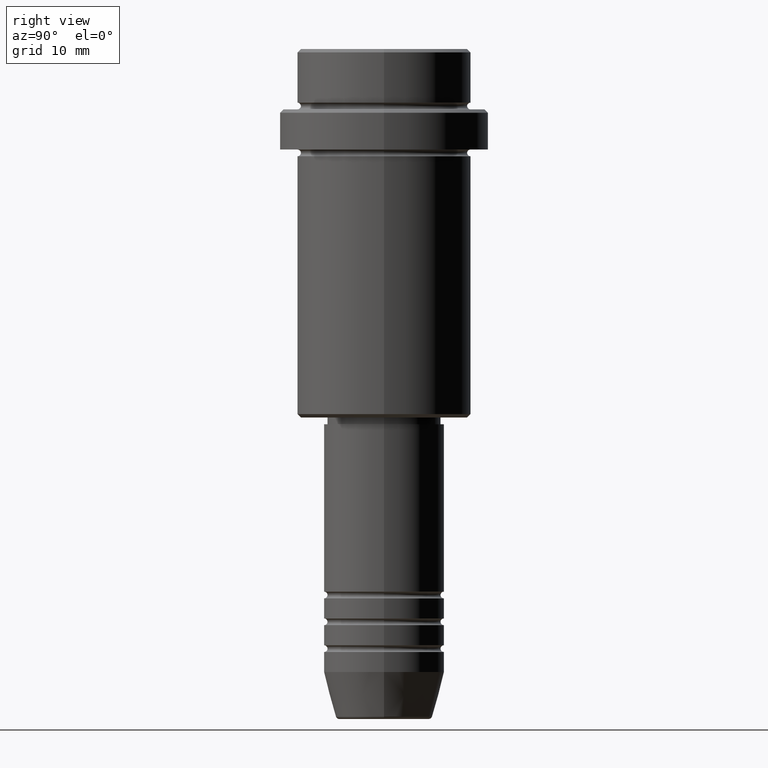
[diagram: clean part render]
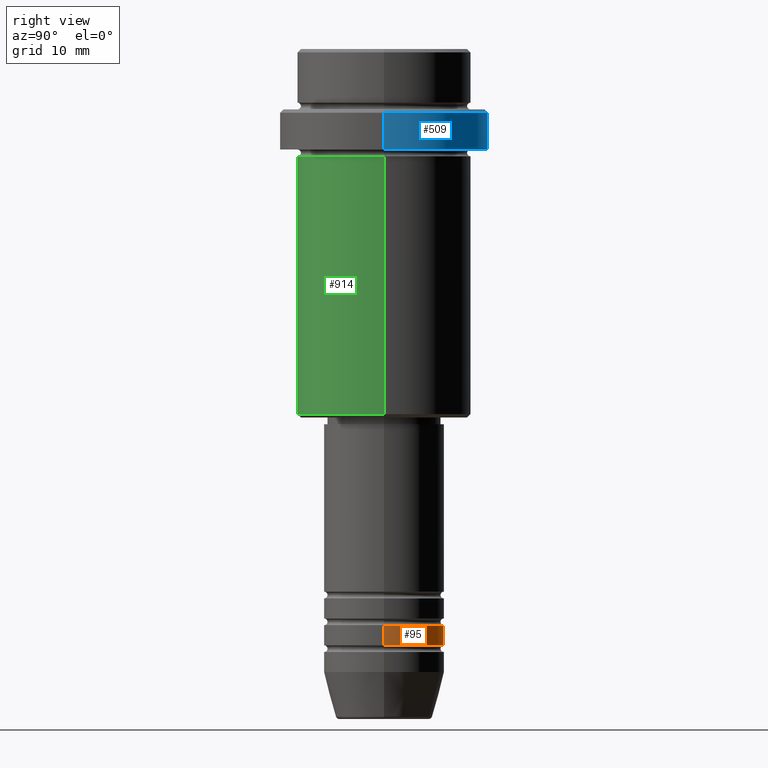
[diagram: same view with three faces highlighted in distinct colors, each labeled with its STEP entity id]
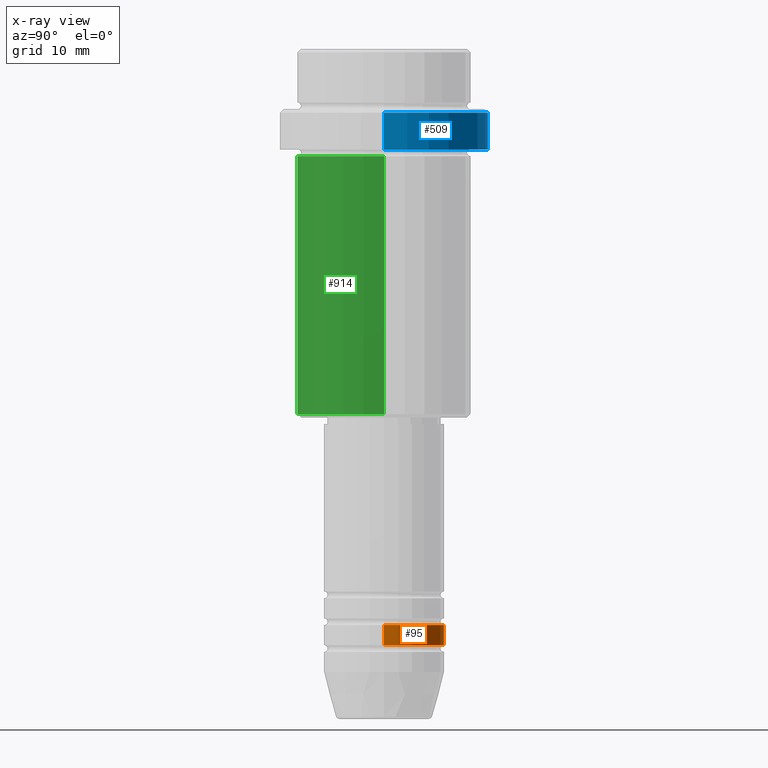
[diagram: x-ray of the same camera — body ghosted, the three highlighted faces saturated]
A machine part, right view with three faces highlighted in distinct colors.
The next image is the same camera in x-ray (body ghosted, the three faces saturated) — at least one of them is partly hidden behind the body in this view.
Their STEP definitions:

[orange] entity #95 — the highlighted cylindrical surface (partial cylindrical patch) has radius 9 mm, axis along (-0, -0, 1).
#12 = AXIS2_PLACEMENT_3D ( 'NONE', #865, #561, #681 ) ;
#39 = ORIENTED_EDGE ( 'NONE', *, *, #210, .T. ) ;
#58 = CIRCLE ( 'NONE', #12, 9.000000000000000000 ) ;
#74 = EDGE_LOOP ( 'NONE', ( #610, #39, #863, #189 ) ) ;
#95 = ADVANCED_FACE ( 'NONE', ( #496 ), #1348, .T. ) ;
#183 = EDGE_CURVE ( 'NONE', #1082, #336, #385, .T. ) ;
#189 = ORIENTED_EDGE ( 'NONE', *, *, #183, .F. ) ;
#210 = EDGE_CURVE ( 'NONE', #1263, #483, #735, .T. ) ;
#247 = CARTESIAN_POINT ( 'NONE',  ( 0.000000000000000000, 0.000000000000000000, 0.000000000000000000 ) ) ;
#336 = VERTEX_POINT ( 'NONE', #1095 ) ;
#358 = CARTESIAN_POINT ( 'NONE',  ( -9.000000000000000000, 1.102182119232617714E-15, -85.99999999999988631 ) ) ;
#385 = LINE ( 'NONE', #594, #603 ) ;
#391 = EDGE_CURVE ( 'NONE', #1082, #1263, #876, .T. ) ;
#483 = VERTEX_POINT ( 'NONE', #358 ) ;
#488 = DIRECTION ( 'NONE',  ( -0.000000000000000000, -0.000000000000000000, 1.000000000000000000 ) ) ;
#496 = FACE_OUTER_BOUND ( 'NONE', #74, .T. ) ;
#503 = CARTESIAN_POINT ( 'NONE',  ( -9.000000000000000000, 1.102182119232617714E-15, -88.99999999999988631 ) ) ;
#534 = CARTESIAN_POINT ( 'NONE',  ( 0.000000000000000000, 0.000000000000000000, -88.99999999999988631 ) ) ;
#561 = DIRECTION ( 'NONE',  ( -0.000000000000000000, -0.000000000000000000, 1.000000000000000000 ) ) ;
#594 = CARTESIAN_POINT ( 'NONE',  ( 9.000000000000000000, 0.000000000000000000, 0.000000000000000000 ) ) ;
#603 = VECTOR ( 'NONE', #1031, 1000.000000000000000 ) ;
#610 = ORIENTED_EDGE ( 'NONE', *, *, #391, .T. ) ;
#664 = DIRECTION ( 'NONE',  ( -0.000000000000000000, -0.000000000000000000, 1.000000000000000000 ) ) ;
#670 = EDGE_CURVE ( 'NONE', #336, #483, #58, .T. ) ;
#676 = DIRECTION ( 'NONE',  ( 1.000000000000000000, 0.000000000000000000, 0.000000000000000000 ) ) ;
#681 = DIRECTION ( 'NONE',  ( 1.000000000000000000, 0.000000000000000000, 0.000000000000000000 ) ) ;
#735 = LINE ( 'NONE', #848, #1131 ) ;
#834 = DIRECTION ( 'NONE',  ( -0.000000000000000000, -0.000000000000000000, 1.000000000000000000 ) ) ;
#848 = CARTESIAN_POINT ( 'NONE',  ( -9.000000000000000000, 1.102182119232617714E-15, 0.000000000000000000 ) ) ;
#863 = ORIENTED_EDGE ( 'NONE', *, *, #670, .F. ) ;
#865 = CARTESIAN_POINT ( 'NONE',  ( 0.000000000000000000, 0.000000000000000000, -85.99999999999988631 ) ) ;
#872 = CARTESIAN_POINT ( 'NONE',  ( 9.000000000000000000, 0.000000000000000000, -88.99999999999988631 ) ) ;
#876 = CIRCLE ( 'NONE', #1019, 9.000000000000000000 ) ;
#1019 = AXIS2_PLACEMENT_3D ( 'NONE', #534, #664, #676 ) ;
#1026 = DIRECTION ( 'NONE',  ( 1.000000000000000000, 0.000000000000000000, 0.000000000000000000 ) ) ;
#1031 = DIRECTION ( 'NONE',  ( -0.000000000000000000, -0.000000000000000000, 1.000000000000000000 ) ) ;
#1082 = VERTEX_POINT ( 'NONE', #872 ) ;
#1084 = AXIS2_PLACEMENT_3D ( 'NONE', #247, #488, #1026 ) ;
#1095 = CARTESIAN_POINT ( 'NONE',  ( 9.000000000000000000, 0.000000000000000000, -85.99999999999988631 ) ) ;
#1131 = VECTOR ( 'NONE', #834, 1000.000000000000000 ) ;
#1263 = VERTEX_POINT ( 'NONE', #503 ) ;
#1348 = CYLINDRICAL_SURFACE ( 'NONE', #1084, 9.000000000000000000 ) ;

[blue] entity #509 — the highlighted cylindrical surface (partial cylindrical patch) has radius 15.5 mm, axis along (-0, -0, 1).
#27 = FACE_OUTER_BOUND ( 'NONE', #903, .T. ) ;
#101 = VERTEX_POINT ( 'NONE', #1232 ) ;
#174 = CIRCLE ( 'NONE', #310, 15.50000000000000000 ) ;
#212 = ORIENTED_EDGE ( 'NONE', *, *, #1037, .F. ) ;
#225 = VECTOR ( 'NONE', #924, 1000.000000000000000 ) ;
#310 = AXIS2_PLACEMENT_3D ( 'NONE', #542, #977, #435 ) ;
#366 = CYLINDRICAL_SURFACE ( 'NONE', #584, 15.50000000000000000 ) ;
#370 = DIRECTION ( 'NONE',  ( -0.000000000000000000, -0.000000000000000000, 1.000000000000000000 ) ) ;
#373 = CARTESIAN_POINT ( 'NONE',  ( -15.50000000000000000, 1.898202538678397557E-15, -9.499999999999984013 ) ) ;
#396 = CARTESIAN_POINT ( 'NONE',  ( 0.000000000000000000, 0.000000000000000000, -15.00000000000000000 ) ) ;
#435 = DIRECTION ( 'NONE',  ( 1.000000000000000000, 0.000000000000000000, 0.000000000000000000 ) ) ;
#467 = CARTESIAN_POINT ( 'NONE',  ( 0.000000000000000000, 0.000000000000000000, 0.000000000000000000 ) ) ;
#509 = ADVANCED_FACE ( 'NONE', ( #27 ), #366, .T. ) ;
#542 = CARTESIAN_POINT ( 'NONE',  ( 0.000000000000000000, 0.000000000000000000, -9.499999999999984013 ) ) ;
#578 = DIRECTION ( 'NONE',  ( 1.000000000000000000, 0.000000000000000000, 0.000000000000000000 ) ) ;
#584 = AXIS2_PLACEMENT_3D ( 'NONE', #467, #1123, #578 ) ;
#602 = CARTESIAN_POINT ( 'NONE',  ( -15.50000000000000000, 1.898202538678397557E-15, 0.000000000000000000 ) ) ;
#619 = VERTEX_POINT ( 'NONE', #1327 ) ;
#624 = VERTEX_POINT ( 'NONE', #690 ) ;
#668 = ORIENTED_EDGE ( 'NONE', *, *, #1187, .T. ) ;
#690 = CARTESIAN_POINT ( 'NONE',  ( -15.50000000000000000, 1.898202538678397557E-15, -15.00000000000000000 ) ) ;
#722 = AXIS2_PLACEMENT_3D ( 'NONE', #396, #370, #1243 ) ;
#798 = CARTESIAN_POINT ( 'NONE',  ( 15.50000000000000000, 0.000000000000000000, 0.000000000000000000 ) ) ;
#800 = EDGE_CURVE ( 'NONE', #619, #624, #969, .T. ) ;
#808 = LINE ( 'NONE', #602, #225 ) ;
#903 = EDGE_LOOP ( 'NONE', ( #1027, #668, #1125, #212 ) ) ;
#923 = EDGE_CURVE ( 'NONE', #1158, #101, #174, .T. ) ;
#924 = DIRECTION ( 'NONE',  ( -0.000000000000000000, -0.000000000000000000, 1.000000000000000000 ) ) ;
#930 = VECTOR ( 'NONE', #1236, 1000.000000000000000 ) ;
#969 = CIRCLE ( 'NONE', #722, 15.50000000000000000 ) ;
#977 = DIRECTION ( 'NONE',  ( 0.000000000000000000, 0.000000000000000000, -1.000000000000000000 ) ) ;
#1027 = ORIENTED_EDGE ( 'NONE', *, *, #800, .T. ) ;
#1037 = EDGE_CURVE ( 'NONE', #619, #101, #1328, .T. ) ;
#1123 = DIRECTION ( 'NONE',  ( -0.000000000000000000, -0.000000000000000000, 1.000000000000000000 ) ) ;
#1125 = ORIENTED_EDGE ( 'NONE', *, *, #923, .T. ) ;
#1158 = VERTEX_POINT ( 'NONE', #373 ) ;
#1187 = EDGE_CURVE ( 'NONE', #624, #1158, #808, .T. ) ;
#1232 = CARTESIAN_POINT ( 'NONE',  ( 15.50000000000000000, 0.000000000000000000, -9.499999999999984013 ) ) ;
#1236 = DIRECTION ( 'NONE',  ( -0.000000000000000000, -0.000000000000000000, 1.000000000000000000 ) ) ;
#1243 = DIRECTION ( 'NONE',  ( 1.000000000000000000, 0.000000000000000000, 0.000000000000000000 ) ) ;
#1327 = CARTESIAN_POINT ( 'NONE',  ( 15.50000000000000000, 0.000000000000000000, -15.00000000000000000 ) ) ;
#1328 = LINE ( 'NONE', #798, #930 ) ;

[green] entity #914 — the highlighted cylindrical surface (partial cylindrical patch) has radius 13 mm, axis along (-0, -0, 1).
#18 = DIRECTION ( 'NONE',  ( 1.000000000000000000, 0.000000000000000000, 0.000000000000000000 ) ) ;
#50 = VERTEX_POINT ( 'NONE', #431 ) ;
#61 = VECTOR ( 'NONE', #340, 1000.000000000000000 ) ;
#87 = FACE_OUTER_BOUND ( 'NONE', #192, .T. ) ;
#139 = EDGE_CURVE ( 'NONE', #1377, #50, #362, .T. ) ;
#192 = EDGE_LOOP ( 'NONE', ( #737, #461, #228, #1268 ) ) ;
#199 = DIRECTION ( 'NONE',  ( -1.000000000000000000, 0.000000000000000000, 0.000000000000000000 ) ) ;
#228 = ORIENTED_EDGE ( 'NONE', *, *, #1076, .T. ) ;
#340 = DIRECTION ( 'NONE',  ( -0.000000000000000000, -0.000000000000000000, 1.000000000000000000 ) ) ;
#346 = CARTESIAN_POINT ( 'NONE',  ( 13.00000000000000000, 0.000000000000000000, 0.000000000000000000 ) ) ;
#362 = LINE ( 'NONE', #579, #807 ) ;
#400 = AXIS2_PLACEMENT_3D ( 'NONE', #871, #673, #18 ) ;
#404 = CARTESIAN_POINT ( 'NONE',  ( -13.00000000000000000, 1.592040838891559095E-15, -54.49999999999999289 ) ) ;
#431 = CARTESIAN_POINT ( 'NONE',  ( -13.00000000000000000, 1.592040838891559095E-15, -16.00000000000000000 ) ) ;
#460 = VERTEX_POINT ( 'NONE', #1117 ) ;
#461 = ORIENTED_EDGE ( 'NONE', *, *, #1414, .T. ) ;
#472 = CARTESIAN_POINT ( 'NONE',  ( 13.00000000000000000, 0.000000000000000000, -16.00000000000000000 ) ) ;
#579 = CARTESIAN_POINT ( 'NONE',  ( -13.00000000000000000, 1.592040838891559095E-15, 0.000000000000000000 ) ) ;
#612 = EDGE_CURVE ( 'NONE', #50, #1113, #684, .T. ) ;
#627 = CYLINDRICAL_SURFACE ( 'NONE', #880, 13.00000000000000000 ) ;
#673 = DIRECTION ( 'NONE',  ( -0.000000000000000000, -0.000000000000000000, 1.000000000000000000 ) ) ;
#684 = CIRCLE ( 'NONE', #400, 13.00000000000000000 ) ;
#737 = ORIENTED_EDGE ( 'NONE', *, *, #139, .F. ) ;
#788 = LINE ( 'NONE', #346, #61 ) ;
#807 = VECTOR ( 'NONE', #1128, 1000.000000000000000 ) ;
#840 = DIRECTION ( 'NONE',  ( 1.000000000000000000, 0.000000000000000000, 0.000000000000000000 ) ) ;
#864 = CARTESIAN_POINT ( 'NONE',  ( 0.000000000000000000, 0.000000000000000000, -54.49999999999999289 ) ) ;
#871 = CARTESIAN_POINT ( 'NONE',  ( 0.000000000000000000, 0.000000000000000000, -16.00000000000000000 ) ) ;
#880 = AXIS2_PLACEMENT_3D ( 'NONE', #1278, #961, #840 ) ;
#914 = ADVANCED_FACE ( 'NONE', ( #87 ), #627, .T. ) ;
#931 = CIRCLE ( 'NONE', #953, 13.00000000000000000 ) ;
#953 = AXIS2_PLACEMENT_3D ( 'NONE', #864, #1275, #199 ) ;
#961 = DIRECTION ( 'NONE',  ( -0.000000000000000000, -0.000000000000000000, 1.000000000000000000 ) ) ;
#1076 = EDGE_CURVE ( 'NONE', #460, #1113, #788, .T. ) ;
#1113 = VERTEX_POINT ( 'NONE', #472 ) ;
#1117 = CARTESIAN_POINT ( 'NONE',  ( 13.00000000000000000, 0.000000000000000000, -54.49999999999999289 ) ) ;
#1128 = DIRECTION ( 'NONE',  ( -0.000000000000000000, -0.000000000000000000, 1.000000000000000000 ) ) ;
#1268 = ORIENTED_EDGE ( 'NONE', *, *, #612, .F. ) ;
#1275 = DIRECTION ( 'NONE',  ( -0.000000000000000000, -0.000000000000000000, 1.000000000000000000 ) ) ;
#1278 = CARTESIAN_POINT ( 'NONE',  ( 0.000000000000000000, 0.000000000000000000, 0.000000000000000000 ) ) ;
#1377 = VERTEX_POINT ( 'NONE', #404 ) ;
#1414 = EDGE_CURVE ( 'NONE', #1377, #460, #931, .T. ) ;